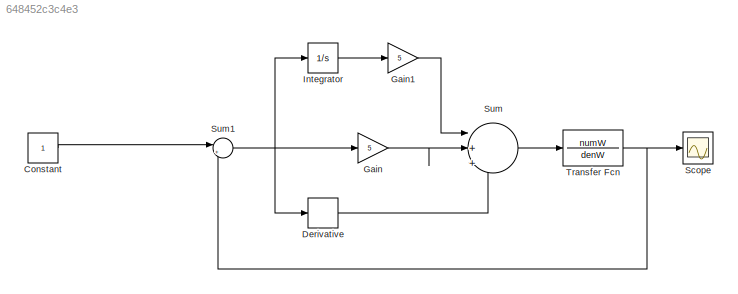
MODEL slx_648452c3c4e3
KIND model
CONFIG AbsTol = auto
CONFIG EnableMultiTasking = off
CONFIG FixedStep = auto
CONFIG MaxStep = auto
CONFIG MinStep = auto
CONFIG RelTol = 1e-3
CONFIG SampleTimeConstraint = Unconstrained
CONFIG SolverName = VariableStepAuto
CONFIG StartTime = 0.0
CONFIG StopTime = 10.0
BLOCK [Constant] Constant
BLOCK [Derivative] Derivative
BLOCK [Gain] Gain
  Gain = 5
BLOCK [Gain] Gain1
  Gain = 5
BLOCK [Integrator] Integrator
BLOCK [Scope] Scope
  ActiveDisplayYMaximum = 2.2247555290993666
  ActiveDisplayYMinimum = -0.24719505878881845
  Floating = off
  GraphicalSettings = {"Style":{"BackgroundColor":[0.12941176470588237,0.12941176470588237,0.12941176470588237],"AxesColor":[0.07058823529411765,0.07058823529411765,0.07058823529411765],"LabelsColor":[0.8509803921568627,0.8509803921568627,0.8509803921568627],"PreserveColors":false,"Visible":[true],"LineStyle":["-"],"LineWidth":[1.5],"BarWidth":[0.9],"LineColor":["auto"],"LineFaceAlpha":[1],"LineEdgeAlpha":[1],"Marker":...<+2008ch>
  MultipleDisplayCache = [{"MaxYLimMag":2.2247555290993666,"MaxYLimReal":2.2247555290993666,"MinYLimMag":0,"MinYLimReal":-0.24719505878881845,"PlotAsMagnitudePhase":false,"ShowGrid":true,"ShowLegend":false,"Title":"%<SignalLabel>","YLabel":""}]
  NumInputPorts = 1
  ScopeFrameLocation = window
  WasSavedAsWebScope = on
  WindowPosition = [360.000000,150.000000,560.000000,420.000000,]
BLOCK [Sum] Sum
  Inputs = |+++
BLOCK [Sum] Sum1
  Inputs = |+-
BLOCK [TransferFcn] Transfer Fcn
  Denominator = denW
  Numerator = numW
LINE Constant:1 -> Sum1:1
LINE Derivative:1 -> Sum:3
LINE Gain1:1 -> Sum:1
LINE Gain:1 -> Sum:2
LINE Integrator:1 -> Gain1:1
NET Sum1:1 -> Derivative:1, Gain:1, Integrator:1
LINE Sum:1 -> Transfer Fcn:1
NET Transfer Fcn:1 -> Scope:1, Sum1:2
note: NET lines group one-source signal fan-out (src -> all destinations, sorted); 1:1 wires keep LINE
